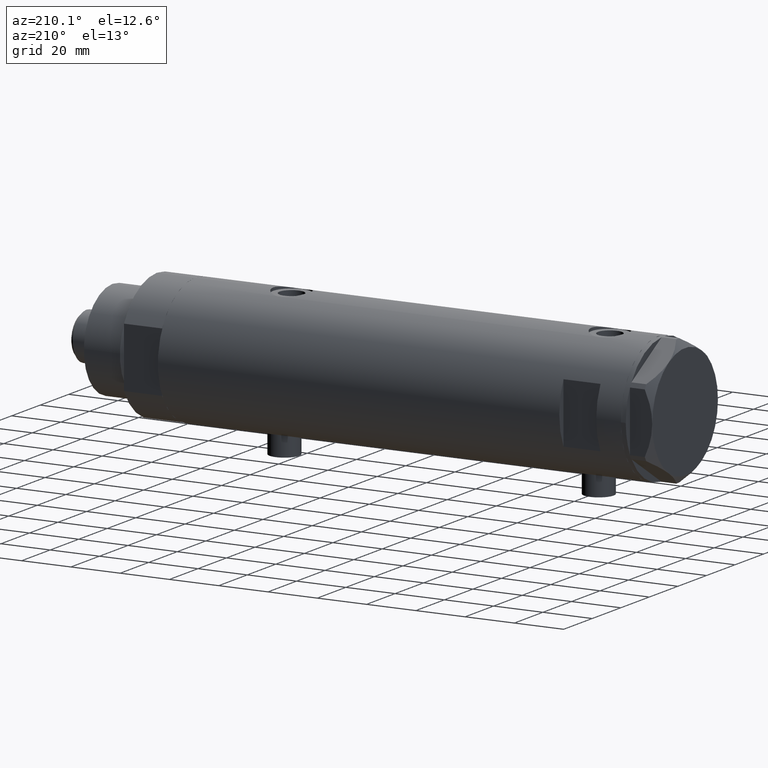
[diagram: clean part render]
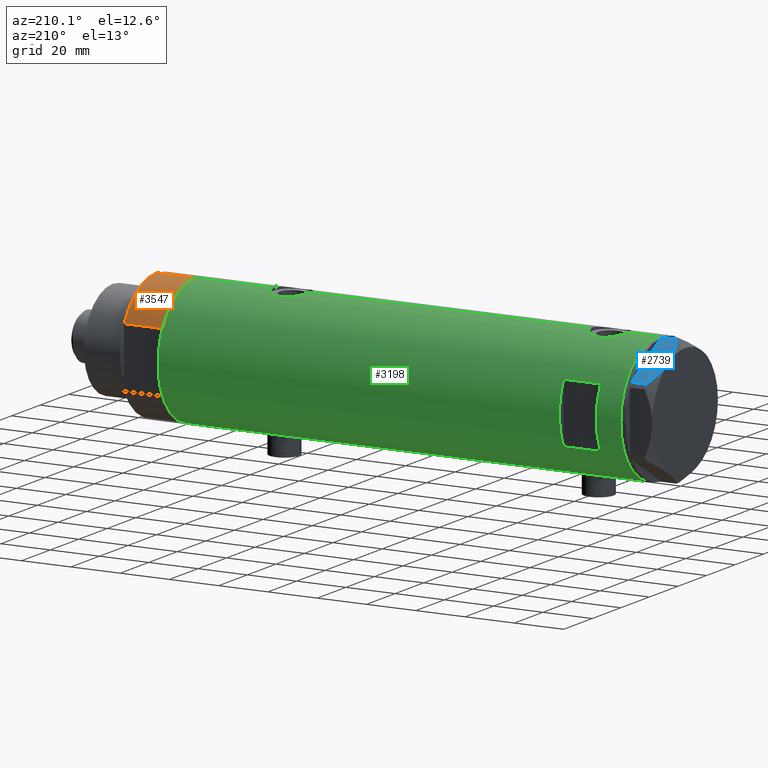
[diagram: same view with three faces highlighted in distinct colors, each labeled with its STEP entity id]
A machine part, auxiliary view with three faces highlighted in distinct colors.
Their STEP definitions:

[orange] entity #3547 — the highlighted cylindrical surface (partial cylindrical patch) has radius 26 mm, axis along (-1, -0, 0).
#215 = ORIENTED_EDGE ( 'NONE', *, *, #2335, .F. ) ;
#248 = AXIS2_PLACEMENT_3D ( 'NONE', #1029, #2546, #1434 ) ;
#292 = CARTESIAN_POINT ( 'NONE',  ( 0.000000000000000000, 0.000000000000000000, 0.000000000000000000 ) ) ;
#552 = CARTESIAN_POINT ( 'NONE',  ( -12.12435565298215145, 23.00000000000000355, 0.000000000000000000 ) ) ;
#844 = LINE ( 'NONE', #1694, #3263 ) ;
#921 = AXIS2_PLACEMENT_3D ( 'NONE', #1873, #1536, #2997 ) ;
#967 = LINE ( 'NONE', #552, #3695 ) ;
#1029 = CARTESIAN_POINT ( 'NONE',  ( 0.000000000000000000, 0.000000000000000000, 15.50000000000000000 ) ) ;
#1031 = ORIENTED_EDGE ( 'NONE', *, *, #2157, .F. ) ;
#1091 = EDGE_LOOP ( 'NONE', ( #215, #1031, #4245, #1686 ) ) ;
#1434 = DIRECTION ( 'NONE',  ( -1.000000000000000000, 0.000000000000000000, 0.000000000000000000 ) ) ;
#1536 = DIRECTION ( 'NONE',  ( 0.000000000000000000, 0.000000000000000000, 1.000000000000000000 ) ) ;
#1686 = ORIENTED_EDGE ( 'NONE', *, *, #2876, .T. ) ;
#1690 = FACE_OUTER_BOUND ( 'NONE', #1091, .T. ) ;
#1694 = CARTESIAN_POINT ( 'NONE',  ( -26.00000000000000355, 0.000000000000000000, 15.50000000000000000 ) ) ;
#1829 = CYLINDRICAL_SURFACE ( 'NONE', #248, 26.00000000000000355 ) ;
#1872 = CARTESIAN_POINT ( 'NONE',  ( -12.12435565298215145, 23.00000000000000355, 0.000000000000000000 ) ) ;
#1873 = CARTESIAN_POINT ( 'NONE',  ( 0.000000000000000000, 0.000000000000000000, 15.50000000000000000 ) ) ;
#2157 = EDGE_CURVE ( 'NONE', #4690, #2283, #3040, .T. ) ;
#2283 = VERTEX_POINT ( 'NONE', #3457 ) ;
#2300 = CARTESIAN_POINT ( 'NONE',  ( -26.00000000000000355, 0.000000000000000000, 0.000000000000000000 ) ) ;
#2335 = EDGE_CURVE ( 'NONE', #2283, #3141, #844, .T. ) ;
#2546 = DIRECTION ( 'NONE',  ( -0.000000000000000000, -0.000000000000000000, -1.000000000000000000 ) ) ;
#2654 = AXIS2_PLACEMENT_3D ( 'NONE', #292, #2924, #4496 ) ;
#2876 = EDGE_CURVE ( 'NONE', #3165, #3141, #4596, .T. ) ;
#2924 = DIRECTION ( 'NONE',  ( 0.000000000000000000, 0.000000000000000000, 1.000000000000000000 ) ) ;
#2997 = DIRECTION ( 'NONE',  ( 1.000000000000000000, 0.000000000000000000, 0.000000000000000000 ) ) ;
#3040 = CIRCLE ( 'NONE', #921, 26.00000000000000355 ) ;
#3141 = VERTEX_POINT ( 'NONE', #2300 ) ;
#3144 = DIRECTION ( 'NONE',  ( -0.000000000000000000, -0.000000000000000000, 1.000000000000000000 ) ) ;
#3165 = VERTEX_POINT ( 'NONE', #1872 ) ;
#3175 = DIRECTION ( 'NONE',  ( -0.000000000000000000, -0.000000000000000000, -1.000000000000000000 ) ) ;
#3263 = VECTOR ( 'NONE', #3175, 1000.000000000000000 ) ;
#3299 = CARTESIAN_POINT ( 'NONE',  ( -12.12435565298214613, 23.00000000000000355, 15.50000000000000000 ) ) ;
#3457 = CARTESIAN_POINT ( 'NONE',  ( -26.00000000000000355, 0.000000000000000000, 15.50000000000000000 ) ) ;
#3528 = EDGE_CURVE ( 'NONE', #3165, #4690, #967, .T. ) ;
#3547 = ADVANCED_FACE ( 'NONE', ( #1690 ), #1829, .T. ) ;
#3695 = VECTOR ( 'NONE', #3144, 1000.000000000000000 ) ;
#4245 = ORIENTED_EDGE ( 'NONE', *, *, #3528, .F. ) ;
#4496 = DIRECTION ( 'NONE',  ( 1.000000000000000000, 0.000000000000000000, 0.000000000000000000 ) ) ;
#4596 = CIRCLE ( 'NONE', #2654, 26.00000000000000355 ) ;
#4690 = VERTEX_POINT ( 'NONE', #3299 ) ;

[blue] entity #2739 — the highlighted planar face has unit normal (-0, -0.5, -0.866).
#27 = ORIENTED_EDGE ( 'NONE', *, *, #4286, .F. ) ;
#101 = DIRECTION ( 'NONE',  ( 0.000000000000000000, 0.000000000000000000, 1.000000000000000000 ) ) ;
#186 = CARTESIAN_POINT ( 'NONE',  ( 7.836767740116735048, -22.03355241838978884, 8.637313967156950767 ) ) ;
#209 = CARTESIAN_POINT ( 'NONE',  ( 11.50000000000018296, -19.91858428704203732, 9.000000000000000000 ) ) ;
#286 = VECTOR ( 'NONE', #2657, 999.9999999999998863 ) ;
#343 = CARTESIAN_POINT ( 'NONE',  ( 0.9699484522386233598, -25.99811238272281244, 5.983800287807552465 ) ) ;
#527 = EDGE_CURVE ( 'NONE', #3356, #3070, #3816, .T. ) ;
#558 = CARTESIAN_POINT ( 'NONE',  ( 11.04134848610953235, -20.18338686205092714, 9.000000000000095923 ) ) ;
#606 = CARTESIAN_POINT ( 'NONE',  ( 11.50000000000018296, -19.91858428704203732, 9.000000000000000000 ) ) ;
#687 = CARTESIAN_POINT ( 'NONE',  ( 22.03005154776152708, -13.83905619136116449, 0.000000000000000000 ) ) ;
#719 = LINE ( 'NONE', #2602, #286 ) ;
#753 = VECTOR ( 'NONE', #1040, 999.9999999999998863 ) ;
#775 = CARTESIAN_POINT ( 'NONE',  ( 1.854543075583504180E-13, -26.55811238272274366, 0.000000000000000000 ) ) ;
#930 = CARTESIAN_POINT ( 'NONE',  ( 2.626494320835812690, -25.04170517956324460, 6.877782426143459915 ) ) ;
#1001 = CARTESIAN_POINT ( 'NONE',  ( 22.03005154776152352, -13.83905619136116449, 5.983800287807632401 ) ) ;
#1040 = DIRECTION ( 'NONE',  ( 0.8660254037844345998, 0.5000000000000069944, 0.000000000000000000 ) ) ;
#1050 = VERTEX_POINT ( 'NONE', #2506 ) ;
#1246 = CARTESIAN_POINT ( 'NONE',  ( 22.00000000000017053, -13.85640646055075464, 0.000000000000000000 ) ) ;
#1383 = CARTESIAN_POINT ( 'NONE',  ( 20.35958612119336308, -14.80349985506228094, 6.844201024438393510 ) ) ;
#1405 = CARTESIAN_POINT ( 'NONE',  ( 11.50000000000018296, -19.91858428704203732, 9.000000000000000000 ) ) ;
#1417 = PLANE ( 'NONE',  #4674 ) ;
#1441 = CARTESIAN_POINT ( 'NONE',  ( 1.854543075583504180E-13, -26.55811238272274366, 9.000000000000000000 ) ) ;
#1534 = EDGE_CURVE ( 'NONE', #1833, #3356, #3274, .T. ) ;
#1569 = CARTESIAN_POINT ( 'NONE',  ( 0.9699484522387652463, -25.99811238272272718, 9.000000000000000000 ) ) ;
#1741 = CARTESIAN_POINT ( 'NONE',  ( 9.197898616903062319, -21.24770314027487572, 8.852712638955805957 ) ) ;
#1833 = VERTEX_POINT ( 'NONE', #2721 ) ;
#1954 = EDGE_CURVE ( 'NONE', #3070, #1050, #3784, .T. ) ;
#2211 = ORIENTED_EDGE ( 'NONE', *, *, #527, .T. ) ;
#2352 = VECTOR ( 'NONE', #101, 1000.000000000000000 ) ;
#2384 = ORIENTED_EDGE ( 'NONE', *, *, #2608, .T. ) ;
#2387 = DIRECTION ( 'NONE',  ( 0.8660254037844345998, 0.5000000000000069944, 0.000000000000000000 ) ) ;
#2506 = CARTESIAN_POINT ( 'NONE',  ( 22.03005154776152352, -13.83905619136116449, 5.983800287807632401 ) ) ;
#2602 = CARTESIAN_POINT ( 'NONE',  ( 1.854543075583504180E-13, -26.55811238272274366, 0.000000000000000000 ) ) ;
#2608 = EDGE_CURVE ( 'NONE', #3213, #1833, #719, .T. ) ;
#2657 = DIRECTION ( 'NONE',  ( 0.8660254037844345998, 0.5000000000000069944, 0.000000000000000000 ) ) ;
#2721 = CARTESIAN_POINT ( 'NONE',  ( 1.000000000000106803, -25.98076211353316367, 0.000000000000000000 ) ) ;
#2739 = ADVANCED_FACE ( 'NONE', ( #4797 ), #1417, .F. ) ;
#2741 = CARTESIAN_POINT ( 'NONE',  ( 0.9699484522387654684, -25.99811238272272718, 0.000000000000000000 ) ) ;
#2818 = EDGE_CURVE ( 'NONE', #4599, #3213, #3766, .T. ) ;
#2825 = CARTESIAN_POINT ( 'NONE',  ( 10.58093321976977386, -20.44920774001120733, 8.981686407609503320 ) ) ;
#2861 = CARTESIAN_POINT ( 'NONE',  ( 6.946777556903783513, -22.54738849024392877, 8.426899937603783641 ) ) ;
#2880 = CARTESIAN_POINT ( 'NONE',  ( 21.20080365460326988, -14.31782268570101735, 6.431317509509397290 ) ) ;
#2901 = CARTESIAN_POINT ( 'NONE',  ( 15.11535457301044261, -17.83125835109846591, 8.707651728477005193 ) ) ;
#2913 = DIRECTION ( 'NONE',  ( -0.5000000000000071054, 0.8660254037844345998, 0.000000000000000000 ) ) ;
#3070 = VERTEX_POINT ( 'NONE', #687 ) ;
#3101 = VECTOR ( 'NONE', #4185, 1000.000000000000000 ) ;
#3203 = ORIENTED_EDGE ( 'NONE', *, *, #2818, .T. ) ;
#3213 = VERTEX_POINT ( 'NONE', #2741 ) ;
#3232 = CARTESIAN_POINT ( 'NONE',  ( 18.64279229058404752, -15.79469123530767227, 7.570552255229726413 ) ) ;
#3267 = ORIENTED_EDGE ( 'NONE', *, *, #1954, .T. ) ;
#3274 = LINE ( 'NONE', #4409, #753 ) ;
#3306 = B_SPLINE_CURVE_WITH_KNOTS ( 'NONE', 3,
 ( #1405, #4446, #2901, #4788, #4001, #3232, #4734, #1383, #2880, #1001 ),
 .UNSPECIFIED., .F., .F.,
 ( 4, 2, 2, 2, 4 ),
 ( 0.01376519981810312224, 0.01998941321701588197, 0.02154546656674407104, 0.02310151991647226011, 0.02621362661592864518 ),
 .UNSPECIFIED. ) ;
#3356 = VERTEX_POINT ( 'NONE', #1246 ) ;
#3584 = CARTESIAN_POINT ( 'NONE',  ( 0.9699484522386233598, -25.99811238272281244, 5.983800287807552465 ) ) ;
#3766 = LINE ( 'NONE', #1569, #3101 ) ;
#3784 = LINE ( 'NONE', #3809, #2352 ) ;
#3794 = EDGE_CURVE ( 'NONE', #4599, #4490, #3919, .T. ) ;
#3809 = CARTESIAN_POINT ( 'NONE',  ( 22.03005154776152352, -13.83905619136116449, 9.000000000000000000 ) ) ;
#3816 = LINE ( 'NONE', #775, #4276 ) ;
#3919 = B_SPLINE_CURVE_WITH_KNOTS ( 'NONE', 3,
 ( #3584, #930, #4747, #2861, #186, #1741, #4353, #2825, #558, #606 ),
 .UNSPECIFIED., .F., .F.,
 ( 4, 2, 2, 2, 4 ),
 ( 0.001228959670438524313, 0.007497079744270824901, 0.01063113978118697747, 0.01219816979964504985, 0.01376519981810312224 ),
 .UNSPECIFIED. ) ;
#4001 = CARTESIAN_POINT ( 'NONE',  ( 17.77001848220201907, -16.29858742851870090, 7.892128867758446908 ) ) ;
#4053 = DIRECTION ( 'NONE',  ( -0.8660254037844344888, -0.5000000000000069944, 0.000000000000000000 ) ) ;
#4067 = ORIENTED_EDGE ( 'NONE', *, *, #3794, .F. ) ;
#4185 = DIRECTION ( 'NONE',  ( 0.000000000000000000, 0.000000000000000000, -1.000000000000000000 ) ) ;
#4268 = ORIENTED_EDGE ( 'NONE', *, *, #1534, .T. ) ;
#4276 = VECTOR ( 'NONE', #2387, 999.9999999999998863 ) ;
#4286 = EDGE_CURVE ( 'NONE', #4490, #1050, #3306, .T. ) ;
#4353 = CARTESIAN_POINT ( 'NONE',  ( 9.656518383329995459, -20.98291889467261129, 8.907842277728439839 ) ) ;
#4409 = CARTESIAN_POINT ( 'NONE',  ( 1.854543075583504180E-13, -26.55811238272274366, 0.000000000000000000 ) ) ;
#4446 = CARTESIAN_POINT ( 'NONE',  ( 13.32175508098997518, -18.86679350063488059, 9.000000000000094147 ) ) ;
#4458 = EDGE_LOOP ( 'NONE', ( #4067, #3203, #2384, #4268, #2211, #3267, #27 ) ) ;
#4490 = VERTEX_POINT ( 'NONE', #209 ) ;
#4599 = VERTEX_POINT ( 'NONE', #343 ) ;
#4674 = AXIS2_PLACEMENT_3D ( 'NONE', #1441, #2913, #4053 ) ;
#4734 = CARTESIAN_POINT ( 'NONE',  ( 19.07486218897004093, -15.54523556316577704, 7.397272853991418096 ) ) ;
#4747 = CARTESIAN_POINT ( 'NONE',  ( 4.320186229910052411, -24.06385169993491857, 7.629374868826107381 ) ) ;
#4788 = CARTESIAN_POINT ( 'NONE',  ( 17.32831362639727146, -16.55360584591992890, 8.040681765829337024 ) ) ;
#4797 = FACE_OUTER_BOUND ( 'NONE', #4458, .T. ) ;

[green] entity #3198 — the highlighted cylindrical surface (partial cylindrical patch) has radius 26 mm, axis along (-1, -0, 0).
#67 = CARTESIAN_POINT ( 'NONE',  ( 25.17636585680005723, 6.493453152855874322, -50.98900750337196541 ) ) ;
#95 = DIRECTION ( 'NONE',  ( 0.000000000000000000, 0.000000000000000000, 1.000000000000000000 ) ) ;
#119 = CARTESIAN_POINT ( 'NONE',  ( 25.31017500740584936, 5.951503630041857562, -50.17950407362597076 ) ) ;
#123 = VECTOR ( 'NONE', #4469, 1000.000000000000000 ) ;
#135 = CARTESIAN_POINT ( 'NONE',  ( -25.81251897318926680, 3.135439098787735190, 75.37199178085172946 ) ) ;
#142 = DIRECTION ( 'NONE',  ( 0.000000000000000000, 0.000000000000000000, 1.000000000000000000 ) ) ;
#147 = CARTESIAN_POINT ( 'NONE',  ( -25.31518616157687163, 5.930210831981644226, -59.66587117207024704 ) ) ;
#171 = CARTESIAN_POINT ( 'NONE',  ( -25.95208098418916975, 1.628413954368986172, -63.69806792170716392 ) ) ;
#180 = CARTESIAN_POINT ( 'NONE',  ( -25.85406084573621754, 2.777003695811651962, 75.56412841326095986 ) ) ;
#189 = CARTESIAN_POINT ( 'NONE',  ( -25.98789693408478740, 0.8193301824842007530, -63.84948980265349405 ) ) ;
#197 = CARTESIAN_POINT ( 'NONE',  ( 25.30960479024496479, 5.958491152160513948, 69.86860322320036687 ) ) ;
#198 = CARTESIAN_POINT ( 'NONE',  ( -25.98057228346869607, 1.024901789261878138, 63.78119414145174204 ) ) ;
#210 = CARTESIAN_POINT ( 'NONE',  ( 25.38117076385347559, 5.641057083563602248, 79.39856579741847042 ) ) ;
#218 = CARTESIAN_POINT ( 'NONE',  ( 25.11254978876589306, 6.737777305585155752, 71.11974648253585940 ) ) ;
#219 = CARTESIAN_POINT ( 'NONE',  ( -25.57189498399054983, 4.707763994471525493, 74.08090281055548587 ) ) ;
#234 = CARTESIAN_POINT ( 'NONE',  ( -25.57189498399055694, 4.707763994471532598, -53.51909718944453687 ) ) ;
#242 = CARTESIAN_POINT ( 'NONE',  ( 24.89484527721569052, 7.499778575171894168, 73.95449194517063063 ) ) ;
#303 = CARTESIAN_POINT ( 'NONE',  ( 25.78922176490238272, 3.335318700939508219, 67.71449431233527605 ) ) ;
#304 = VERTEX_POINT ( 'NONE', #4218 ) ;
#321 = DIRECTION ( 'NONE',  ( -0.000000000000000000, -0.000000000000000000, -1.000000000000000000 ) ) ;
#369 = CARTESIAN_POINT ( 'NONE',  ( 25.94484652078418563, 1.709678645892020787, -62.05665346759173673 ) ) ;
#377 = CARTESIAN_POINT ( 'NONE',  ( 24.90976107960111818, 7.450765568638821001, 75.43882869351466525 ) ) ;
#379 = LINE ( 'NONE', #1849, #2106 ) ;
#389 = VERTEX_POINT ( 'NONE', #4680 ) ;
#391 = VECTOR ( 'NONE', #321, 1000.000000000000000 ) ;
#395 = CARTESIAN_POINT ( 'NONE',  ( 25.38132706741445688, 5.649034551923786118, -59.70731952814044519 ) ) ;
#406 = CARTESIAN_POINT ( 'NONE',  ( 26.00000000000001066, 0.4983968644076011700, 66.95000000000003126 ) ) ;
#419 = CARTESIAN_POINT ( 'NONE',  ( 25.59528664075983428, 4.573671112500298896, -60.69909503516726090 ) ) ;
#437 = EDGE_CURVE ( 'NONE', #1170, #389, #3562, .T. ) ;
#438 = CARTESIAN_POINT ( 'NONE',  ( 25.00820649268565887, 7.115348876445586335, -52.32815999524549966 ) ) ;
#448 = DIRECTION ( 'NONE',  ( 0.000000000000000000, 1.000000000000000000, -4.803849625781927035E-15 ) ) ;
#467 = CARTESIAN_POINT ( 'NONE',  ( 0.000000000000000000, 0.000000000000000000, -93.95000000000000284 ) ) ;
#489 = VERTEX_POINT ( 'NONE', #4796 ) ;
#504 = CARTESIAN_POINT ( 'NONE',  ( -25.85449082491264150, 2.772892880050696007, 64.33390702514678594 ) ) ;
#513 = CARTESIAN_POINT ( 'NONE',  ( -25.28673619335056699, 6.048783215285175707, -59.27550990348180449 ) ) ;
#526 = CARTESIAN_POINT ( 'NONE',  ( -25.92432690655987315, 2.018143994254077978, 64.02070577177286737 ) ) ;
#530 = LINE ( 'NONE', #3123, #1600 ) ;
#537 = CARTESIAN_POINT ( 'NONE',  ( 25.27545867390324119, 6.096774941222088628, -50.37522593042033492 ) ) ;
#539 = CARTESIAN_POINT ( 'NONE',  ( -25.33346170681504006, 5.849967696906726466, -55.44052947900495809 ) ) ;
#565 = CARTESIAN_POINT ( 'NONE',  ( -25.85449082491264150, 2.772892880050693787, -63.26609297485322259 ) ) ;
#573 = CARTESIAN_POINT ( 'NONE',  ( -25.23757896588369576, 6.250168635417627350, 69.54324691589501128 ) ) ;
#582 = CARTESIAN_POINT ( 'NONE',  ( -25.31738333113901618, 5.918941409682884291, -55.63242077527677765 ) ) ;
#609 = CARTESIAN_POINT ( 'NONE',  ( -25.42927140605242187, 5.422776733968219354, -54.51556003986718224 ) ) ;
#630 = VERTEX_POINT ( 'NONE', #3429 ) ;
#649 = CARTESIAN_POINT ( 'NONE',  ( 25.89067367629246164, 2.424883365422562775, 81.56405204505169593 ) ) ;
#667 = EDGE_CURVE ( 'NONE', #2224, #1170, #4212, .T. ) ;
#682 = CARTESIAN_POINT ( 'NONE',  ( 24.96662810169869573, 7.257932614256865200, 76.40297309526735603 ) ) ;
#728 = CARTESIAN_POINT ( 'NONE',  ( 25.97197502027376004, 1.230965554787597060, 81.85240824498373513 ) ) ;
#758 = CARTESIAN_POINT ( 'NONE',  ( -25.90661719257678541, 2.209805098346977914, -51.80011254218477745 ) ) ;
#779 = CIRCLE ( 'NONE', #1404, 26.00000000000000355 ) ;
#790 = CARTESIAN_POINT ( 'NONE',  ( 24.97016856345952718, 7.245430721349219283, -56.70303040919392856 ) ) ;
#810 = EDGE_CURVE ( 'NONE', #4811, #2994, #2764, .T. ) ;
#814 = CARTESIAN_POINT ( 'NONE',  ( 25.01140519645288762, 7.101774040639623919, -57.17392235700823733 ) ) ;
#890 = EDGE_CURVE ( 'NONE', #389, #489, #2564, .T. ) ;
#891 = CARTESIAN_POINT ( 'NONE',  ( 25.31017500740586001, 5.951503630041874437, 79.02049592637401076 ) ) ;
#898 = CARTESIAN_POINT ( 'NONE',  ( -25.59680708126579773, 4.563450671387936808, 65.67456050020027192 ) ) ;
#906 = CARTESIAN_POINT ( 'NONE',  ( -25.92432690655987315, 2.018143994254076201, -63.57929422822715537 ) ) ;
#922 = CARTESIAN_POINT ( 'NONE',  ( -25.98789693408479096, 0.8193301824841990877, 63.75051019734653579 ) ) ;
#957 = CARTESIAN_POINT ( 'NONE',  ( -26.00000000000000355, 3.184077527250253257E-15, -63.90000000000001279 ) ) ;
#963 = ORIENTED_EDGE ( 'NONE', *, *, #1380, .F. ) ;
#974 = LINE ( 'NONE', #3453, #2589 ) ;
#1047 = CARTESIAN_POINT ( 'NONE',  ( -26.00000000000000355, 3.184077527325983904E-15, 63.70000000000000995 ) ) ;
#1064 = EDGE_LOOP ( 'NONE', ( #4494, #1610, #2974, #3693, #2348, #4355, #2145, #3946, #3298, #1300, #3574, #4321 ) ) ;
#1125 = CARTESIAN_POINT ( 'NONE',  ( 25.48882460966380492, 5.133289275481218716, -60.22343523597908188 ) ) ;
#1170 = VERTEX_POINT ( 'NONE', #2142 ) ;
#1179 = CARTESIAN_POINT ( 'NONE',  ( -25.31518616157687518, 5.930210831981638009, 67.93412882792976859 ) ) ;
#1208 = CYLINDRICAL_SURFACE ( 'NONE', #3259, 26.00000000000000355 ) ;
#1213 = CARTESIAN_POINT ( 'NONE',  ( 26.00000000000000355, 0.000000000000000000, -93.95000000000000284 ) ) ;
#1227 = CARTESIAN_POINT ( 'NONE',  ( -12.12435565298214080, 23.00000000000000355, 83.95000000000000284 ) ) ;
#1229 = CARTESIAN_POINT ( 'NONE',  ( 25.41763780493360514, 5.474943943663457269, -49.61823686211067042 ) ) ;
#1258 = CARTESIAN_POINT ( 'NONE',  ( -25.95015815577423268, 1.621168830448744158, -51.61041429560182081 ) ) ;
#1266 = VERTEX_POINT ( 'NONE', #1213 ) ;
#1270 = CARTESIAN_POINT ( 'NONE',  ( -25.33346170681504361, 5.849967696906720249, 72.15947052099508596 ) ) ;
#1280 = CARTESIAN_POINT ( 'NONE',  ( -25.57167265924275057, 4.701795585128879296, -61.77276288310033436 ) ) ;
#1293 = CARTESIAN_POINT ( 'NONE',  ( -25.24766879991037172, 6.209837761082654062, 70.76849569029700149 ) ) ;
#1300 = ORIENTED_EDGE ( 'NONE', *, *, #3944, .F. ) ;
#1305 = CARTESIAN_POINT ( 'NONE',  ( -25.36894112891956254, 5.694149517195242538, -60.23482505198307990 ) ) ;
#1317 = CARTESIAN_POINT ( 'NONE',  ( 25.52465069878074289, 4.952713637311392247, 68.81255139184744962 ) ) ;
#1319 = CARTESIAN_POINT ( 'NONE',  ( -25.67095236150574777, 4.133649689219788925, 74.65535228274264057 ) ) ;
#1328 = CARTESIAN_POINT ( 'NONE',  ( 26.00000000000000000, 0.2455784580650491877, -47.25000000000000000 ) ) ;
#1331 = CARTESIAN_POINT ( 'NONE',  ( -26.00000000000000711, 0.2043916521039016998, -63.90000000000001279 ) ) ;
#1332 = VECTOR ( 'NONE', #1376, 1000.000000000000000 ) ;
#1340 = CARTESIAN_POINT ( 'NONE',  ( -25.28915991580760192, 6.038390257328910771, 71.57552651146907863 ) ) ;
#1352 = CARTESIAN_POINT ( 'NONE',  ( -25.45277932469921467, 5.307477387851106343, -60.95672800165311855 ) ) ;
#1359 = CARTESIAN_POINT ( 'NONE',  ( 24.97016856345952007, 7.245430721349213954, 72.49696959080606007 ) ) ;
#1373 = CARTESIAN_POINT ( 'NONE',  ( -25.28915991580758771, 6.038390257328915212, -56.02447348853092279 ) ) ;
#1376 = DIRECTION ( 'NONE',  ( 0.000000000000000000, 0.000000000000000000, 1.000000000000000000 ) ) ;
#1380 = EDGE_CURVE ( 'NONE', #3862, #3983, #3421, .T. ) ;
#1402 = CARTESIAN_POINT ( 'NONE',  ( 25.59685363299823635, 4.579266302355753382, 80.40972068102654191 ) ) ;
#1404 = AXIS2_PLACEMENT_3D ( 'NONE', #4810, #3304, #1824 ) ;
#1408 = CARTESIAN_POINT ( 'NONE',  ( 25.20855488770172315, 6.367749707222633226, 78.42002223040960018 ) ) ;
#1495 = ORIENTED_EDGE ( 'NONE', *, *, #4724, .F. ) ;
#1501 = B_SPLINE_CURVE_WITH_KNOTS ( 'NONE', 3,
 ( #4303, #2451, #4673, #2107, #4323, #2473, #3122, #180, #135, #3576, #1319, #219, #1642, #2011, #3194, #1270, #1730, #1340, #2772, #1293, #3935, #573, #3214, #1666, #1179, #2836, #3912, #4260, #3866, #2797, #3885, #2066, #898, #2689, #4166, #4281, #504, #526, #2039, #198, #922, #2432, #3538, #1047 ),
 .UNSPECIFIED., .F., .F.,
 ( 4, 2, 2, 2, 2, 2, 2, 2, 2, 2, 2, 2, 2, 2, 2, 2, 2, 2, 2, 2, 2, 4 ),
 ( 1.191872608207982896E-18, 0.001225774033668414415, 0.001838661050502624766, 0.002451548067336834901, 0.003677322101005254303, 0.004903096134673673272, 0.006128870168342093541, 0.007354644202010512943, 0.007967531218844704430, 0.008580418235678894182, 0.009806192269347313584, 0.01103196630301573472, 0.01225774033668415586, 0.01287062735351834561, 0.01348351437035253536, 0.01409640138718672858, 0.01470928840402092007, 0.01593506243768930131, 0.01716083647135768081, 0.01838661050502606725, 0.01899949752186025700, 0.01961238453869444676 ),
 .UNSPECIFIED. ) ;
#1533 = CARTESIAN_POINT ( 'NONE',  ( 25.98569222077104968, 0.9879514382926379845, -62.20081846687560301 ) ) ;
#1545 = CARTESIAN_POINT ( 'NONE',  ( 25.92799636947105668, 1.948138538329397651, 67.20322312211786198 ) ) ;
#1555 = CARTESIAN_POINT ( 'NONE',  ( 24.89484527721569052, 7.499778575171895056, -55.24550805482936511 ) ) ;
#1557 = CARTESIAN_POINT ( 'NONE',  ( -25.99009688862344092, 0.8219492608955333290, -51.44084060773424483 ) ) ;
#1578 = CARTESIAN_POINT ( 'NONE',  ( 25.03487248886523986, 7.018875226450791871, -57.40423217392064714 ) ) ;
#1592 = CARTESIAN_POINT ( 'NONE',  ( -26.00000000000000355, 1.227111019500118713E-15, 76.20000000000001705 ) ) ;
#1600 = VECTOR ( 'NONE', #2776, 1000.000000000000000 ) ;
#1601 = CARTESIAN_POINT ( 'NONE',  ( 26.00000000000000711, 0.4983968644076025023, -62.25000000000002132 ) ) ;
#1603 = DIRECTION ( 'NONE',  ( 1.000000000000000000, 0.000000000000000000, 0.000000000000000000 ) ) ;
#1610 = ORIENTED_EDGE ( 'NONE', *, *, #3490, .T. ) ;
#1626 = CARTESIAN_POINT ( 'NONE',  ( 25.93077501166307641, 1.957027822413551332, -47.49302141437592439 ) ) ;
#1628 = CARTESIAN_POINT ( 'NONE',  ( -26.00000000000000711, 0.4145874687851193174, -51.39999999999999858 ) ) ;
#1642 = CARTESIAN_POINT ( 'NONE',  ( -25.52242378584899640, 4.965907353613394193, 73.76719602921740204 ) ) ;
#1666 = CARTESIAN_POINT ( 'NONE',  ( -25.28673619335055278, 6.048783215285170378, 68.32449009651820404 ) ) ;
#1699 = CARTESIAN_POINT ( 'NONE',  ( -25.99759026373432036, 0.4091325989570689381, -63.88999890044897967 ) ) ;
#1716 = EDGE_CURVE ( 'NONE', #1266, #4133, #379, .T. ) ;
#1729 = CARTESIAN_POINT ( 'NONE',  ( 25.03487248886523986, 7.018875226450789206, 71.79576782607935570 ) ) ;
#1730 = CARTESIAN_POINT ( 'NONE',  ( -25.31738333113901263, 5.918941409682878074, 71.96757922472318114 ) ) ;
#1824 = DIRECTION ( 'NONE',  ( 1.000000000000000000, 0.000000000000000000, 0.000000000000000000 ) ) ;
#1843 = CARTESIAN_POINT ( 'NONE',  ( 25.72868876879096334, 3.768709330223698473, 80.95267486870062612 ) ) ;
#1849 = CARTESIAN_POINT ( 'NONE',  ( 26.00000000000000355, 0.000000000000000000, -93.95000000000000284 ) ) ;
#1865 = ORIENTED_EDGE ( 'NONE', *, *, #4311, .F. ) ;
#1897 = CARTESIAN_POINT ( 'NONE',  ( 25.30960479024496479, 5.958491152160522830, -59.33139677679963597 ) ) ;
#1898 = CARTESIAN_POINT ( 'NONE',  ( -25.85406084573621754, 2.777003695811657735, -52.03587158673904156 ) ) ;
#1923 = CARTESIAN_POINT ( 'NONE',  ( 24.95233689475079331, 7.306396477445179727, -56.46103813146666539 ) ) ;
#1949 = CARTESIAN_POINT ( 'NONE',  ( 25.08669247833291749, 6.831361936037321669, -51.64462260596209831 ) ) ;
#1973 = CARTESIAN_POINT ( 'NONE',  ( -26.00000000000000355, -8.503928565788675107E-16, -51.39999999999999858 ) ) ;
#1998 = CARTESIAN_POINT ( 'NONE',  ( 25.89067367629246164, 2.424883365422552561, -47.63594795494832113 ) ) ;
#2011 = CARTESIAN_POINT ( 'NONE',  ( -25.42927140605242187, 5.422776733968214025, 73.08443996013286892 ) ) ;
#2021 = DIRECTION ( 'NONE',  ( 1.000000000000000000, -5.329070518200751394E-15, 0.000000000000000000 ) ) ;
#2031 = AXIS2_PLACEMENT_3D ( 'NONE', #4608, #3430, #2021 ) ;
#2039 = CARTESIAN_POINT ( 'NONE',  ( -25.95208098418916975, 1.628413954368974625, 63.90193207829288013 ) ) ;
#2053 = CARTESIAN_POINT ( 'NONE',  ( -25.38875076695534361, 5.605452563035141722, -60.42185900824105715 ) ) ;
#2066 = CARTESIAN_POINT ( 'NONE',  ( -25.57167265924275057, 4.701795585128869526, 65.82723711689968127 ) ) ;
#2076 = CARTESIAN_POINT ( 'NONE',  ( -25.98057228346870673, 1.024901789261887464, -63.81880585854828070 ) ) ;
#2094 = CARTESIAN_POINT ( 'NONE',  ( -25.24784248027028966, 6.209126813737967154, -58.47268161688059251 ) ) ;
#2105 = CARTESIAN_POINT ( 'NONE',  ( 25.48882460966380492, 5.133289275481214275, 68.97656476402090675 ) ) ;
#2106 = VECTOR ( 'NONE', #3002, 1000.000000000000000 ) ;
#2107 = CARTESIAN_POINT ( 'NONE',  ( -25.96182217530153480, 1.422664245316465959, 76.03935273092392322 ) ) ;
#2142 = CARTESIAN_POINT ( 'NONE',  ( 26.00000000000000355, -3.975028449552882818E-20, 81.94999999999998863 ) ) ;
#2145 = ORIENTED_EDGE ( 'NONE', *, *, #890, .F. ) ;
#2177 = CARTESIAN_POINT ( 'NONE',  ( 25.88814720404043968, 2.420758939209242566, 67.34711713171545000 ) ) ;
#2188 = CARTESIAN_POINT ( 'NONE',  ( 26.00000000000000355, -3.975028449552882818E-20, 81.94999999999998863 ) ) ;
#2191 = CARTESIAN_POINT ( 'NONE',  ( -26.00000000000000355, 3.184081677783118585E-15, -93.95000000000000284 ) ) ;
#2214 = LINE ( 'NONE', #2191, #123 ) ;
#2224 = VERTEX_POINT ( 'NONE', #4839 ) ;
#2245 = EDGE_CURVE ( 'NONE', #4811, #304, #2214, .T. ) ;
#2268 = CARTESIAN_POINT ( 'NONE',  ( 25.63006864069249602, 4.375159448492148329, -60.84654411758881309 ) ) ;
#2275 = CARTESIAN_POINT ( 'NONE',  ( 25.11550258961940330, 6.725017566862031337, 77.77928477806021590 ) ) ;
#2297 = CARTESIAN_POINT ( 'NONE',  ( 25.88814720404043968, 2.420758939209242566, -61.85288286828453153 ) ) ;
#2324 = CARTESIAN_POINT ( 'NONE',  ( -25.96182217530152769, 1.422664245316466847, -51.56064726907609241 ) ) ;
#2348 = ORIENTED_EDGE ( 'NONE', *, *, #2486, .F. ) ;
#2393 = CARTESIAN_POINT ( 'NONE',  ( 26.00000000000000355, 0.000000000000000000, -93.95000000000000284 ) ) ;
#2405 = VERTEX_POINT ( 'NONE', #2581 ) ;
#2432 = CARTESIAN_POINT ( 'NONE',  ( -25.99759026373432391, 0.4091325989570679389, 63.71000109955102175 ) ) ;
#2451 = CARTESIAN_POINT ( 'NONE',  ( -26.00000000000000711, 0.4145874687851191509, 76.20000000000003126 ) ) ;
#2473 = CARTESIAN_POINT ( 'NONE',  ( -25.92257874449350652, 2.014648337067151296, 75.86996418363679595 ) ) ;
#2486 = EDGE_CURVE ( 'NONE', #2826, #304, #1501, .T. ) ;
#2493 = CIRCLE ( 'NONE', #2031, 26.00000000000000355 ) ;
#2497 = CARTESIAN_POINT ( 'NONE',  ( 24.95233689475078620, 7.306396477445174398, 72.73896186853336587 ) ) ;
#2518 = CARTESIAN_POINT ( 'NONE',  ( 26.00000000000000355, -3.975025925197986111E-20, -47.25000000000000000 ) ) ;
#2562 = CARTESIAN_POINT ( 'NONE',  ( 12.12435565298214080, 23.00000000000000355, -93.95000000000000284 ) ) ;
#2564 = CIRCLE ( 'NONE', #3096, 26.00000000000000355 ) ;
#2577 = CARTESIAN_POINT ( 'NONE',  ( 26.00000000000000355, 0.000000000000000000, -93.95000000000000284 ) ) ;
#2581 = CARTESIAN_POINT ( 'NONE',  ( -26.00000000000000355, 3.184081677783118585E-15, -93.95000000000000284 ) ) ;
#2585 = CARTESIAN_POINT ( 'NONE',  ( -26.00000000000000355, 3.184081677783118585E-15, -93.95000000000000284 ) ) ;
#2587 = CARTESIAN_POINT ( 'NONE',  ( 25.99652140603931727, 0.4914164889130596126, 81.93796820480459075 ) ) ;
#2589 = VECTOR ( 'NONE', #2635, 1000.000000000000000 ) ;
#2635 = DIRECTION ( 'NONE',  ( 0.000000000000000000, 0.000000000000000000, 1.000000000000000000 ) ) ;
#2669 = CARTESIAN_POINT ( 'NONE',  ( 25.17424625143663164, 6.506691718592096940, -58.51241626033723975 ) ) ;
#2689 = CARTESIAN_POINT ( 'NONE',  ( -25.67176285215957776, 4.128807479817784731, 65.24008401548877600 ) ) ;
#2693 = CARTESIAN_POINT ( 'NONE',  ( 24.90976107960111818, 7.450765568638821890, -53.76117130648535181 ) ) ;
#2697 = CARTESIAN_POINT ( 'NONE',  ( 0.000000000000000000, 0.000000000000000000, 68.95000000000008811 ) ) ;
#2762 = CARTESIAN_POINT ( 'NONE',  ( -25.92257874449351007, 2.014648337067152184, -51.73003581636323389 ) ) ;
#2764 = B_SPLINE_CURVE_WITH_KNOTS ( 'NONE', 3,
 ( #3473, #1628, #1557, #2324, #1258, #2762, #758, #1898, #3800, #3432, #3503, #234, #3224, #609, #4729, #539, #582, #1373, #4663, #4249, #3926, #3206, #2094, #513, #147, #1305, #2053, #3135, #1352, #3545, #4316, #1280, #2787, #3529, #4685, #2830, #565, #906, #171, #2076, #189, #1699, #1331, #957 ),
 .UNSPECIFIED., .F., .F.,
 ( 4, 2, 2, 2, 2, 2, 2, 2, 2, 2, 2, 2, 2, 2, 2, 2, 2, 2, 2, 2, 2, 4 ),
 ( 8.259724962660511443E-19, 0.001225774033668413547, 0.001838661050502616960, 0.002451548067336820590, 0.003677322101005227849, 0.004903096134673635108, 0.006128870168342044969, 0.007354644202010452228, 0.007967531218844647184, 0.008580418235678840405, 0.009806192269347230317, 0.01103196630301561676, 0.01225774033668400667, 0.01287062735351820163, 0.01348351437035239485, 0.01409640138718658807, 0.01470928840402078129, 0.01593506243768920069, 0.01716083647135761489, 0.01838661050502603256, 0.01899949752186024313, 0.01961238453869445023 ),
 .UNSPECIFIED. ) ;
#2772 = CARTESIAN_POINT ( 'NONE',  ( -25.27696731428695998, 6.089059008147561514, 71.37416306959482881 ) ) ;
#2776 = DIRECTION ( 'NONE',  ( 0.000000000000000000, 0.000000000000000000, 1.000000000000000000 ) ) ;
#2786 = CARTESIAN_POINT ( 'NONE',  ( 25.97197502027375293, 1.230965554787593730, -47.34759175501623218 ) ) ;
#2787 = CARTESIAN_POINT ( 'NONE',  ( -25.59680708126580129, 4.563450671387948354, -61.92543949979970819 ) ) ;
#2797 = CARTESIAN_POINT ( 'NONE',  ( -25.49884629689154281, 5.081547904122039938, 66.30560194303913590 ) ) ;
#2805 = CARTESIAN_POINT ( 'NONE',  ( 26.00000000000000355, -3.975025925197986111E-20, -47.25000000000000000 ) ) ;
#2815 = CARTESIAN_POINT ( 'NONE',  ( 25.38132706741445332, 5.649034551923781677, 69.49268047185955766 ) ) ;
#2826 = VERTEX_POINT ( 'NONE', #1592 ) ;
#2830 = CARTESIAN_POINT ( 'NONE',  ( -25.81206132723605506, 3.139065735901513055, -63.06978769360878090 ) ) ;
#2836 = CARTESIAN_POINT ( 'NONE',  ( -25.36894112891957320, 5.694149517195235433, 67.36517494801691441 ) ) ;
#2890 = DIRECTION ( 'NONE',  ( 0.000000000000000000, 0.000000000000000000, 1.000000000000000000 ) ) ;
#2905 = CARTESIAN_POINT ( 'NONE',  ( 25.27545867390324830, 6.096774941222087740, 78.82477406957966082 ) ) ;
#2948 = CARTESIAN_POINT ( 'NONE',  ( 25.93077501166307641, 1.957027822413550888, 81.70697858562411398 ) ) ;
#2974 = ORIENTED_EDGE ( 'NONE', *, *, #810, .F. ) ;
#2994 = VERTEX_POINT ( 'NONE', #4373 ) ;
#3000 = CARTESIAN_POINT ( 'NONE',  ( 25.08669247833292459, 6.831361936037321669, 77.55537739403790454 ) ) ;
#3002 = DIRECTION ( 'NONE',  ( 0.000000000000000000, 0.000000000000000000, 1.000000000000000000 ) ) ;
#3003 = VECTOR ( 'NONE', #3010, 1000.000000000000000 ) ;
#3010 = DIRECTION ( 'NONE',  ( 0.000000000000000000, 0.000000000000000000, 1.000000000000000000 ) ) ;
#3048 = CARTESIAN_POINT ( 'NONE',  ( 24.89471231507667071, 7.500219916954787180, -54.26121773116971525 ) ) ;
#3069 = FACE_OUTER_BOUND ( 'NONE', #1064, .T. ) ;
#3096 = AXIS2_PLACEMENT_3D ( 'NONE', #3324, #2890, #4357 ) ;
#3109 = CARTESIAN_POINT ( 'NONE',  ( 25.98255381630415783, 0.9836221648041303389, -47.31066901941807856 ) ) ;
#3122 = CARTESIAN_POINT ( 'NONE',  ( -25.90661719257679607, 2.209805098346973029, 75.79988745781523107 ) ) ;
#3123 = CARTESIAN_POINT ( 'NONE',  ( -26.00000000000000355, 3.184081677783118585E-15, -93.95000000000000284 ) ) ;
#3135 = CARTESIAN_POINT ( 'NONE',  ( -25.43062364804612940, 5.412314182902760784, -60.78227648580931941 ) ) ;
#3155 = CARTESIAN_POINT ( 'NONE',  ( 25.20855488770171959, 6.367749707222635891, -50.77997776959043108 ) ) ;
#3193 = CARTESIAN_POINT ( 'NONE',  ( 25.63006864069250668, 4.375159448492141223, 68.35345588241118264 ) ) ;
#3194 = CARTESIAN_POINT ( 'NONE',  ( -25.38675822915647728, 5.615881323213574028, 72.72306781662010167 ) ) ;
#3198 = ADVANCED_FACE ( 'NONE', ( #4591, #3069 ), #1208, .T. ) ;
#3206 = CARTESIAN_POINT ( 'NONE',  ( -25.23757896588369221, 6.250168635417633567, -58.05675308410501145 ) ) ;
#3214 = CARTESIAN_POINT ( 'NONE',  ( -25.24784248027028966, 6.209126813737962713, 69.12731838311943022 ) ) ;
#3220 = EDGE_CURVE ( 'NONE', #3245, #630, #2493, .T. ) ;
#3224 = CARTESIAN_POINT ( 'NONE',  ( -25.52242378584900351, 4.965907353613399522, -53.83280397078263491 ) ) ;
#3245 = VERTEX_POINT ( 'NONE', #1227 ) ;
#3259 = AXIS2_PLACEMENT_3D ( 'NONE', #467, #95, #1603 ) ;
#3261 = LINE ( 'NONE', #2562, #391 ) ;
#3286 = CARTESIAN_POINT ( 'NONE',  ( 24.89471231507667426, 7.500219916954787180, 74.93878226883029470 ) ) ;
#3289 = ORIENTED_EDGE ( 'NONE', *, *, #3220, .F. ) ;
#3298 = ORIENTED_EDGE ( 'NONE', *, *, #667, .F. ) ;
#3304 = DIRECTION ( 'NONE',  ( 0.000000000000000000, 0.000000000000000000, 1.000000000000000000 ) ) ;
#3324 = CARTESIAN_POINT ( 'NONE',  ( 0.000000000000000000, 0.000000000000000000, 93.95000000000000284 ) ) ;
#3348 = LINE ( 'NONE', #2577, #3003 ) ;
#3353 = CARTESIAN_POINT ( 'NONE',  ( 25.92799636947105313, 1.948138538329397651, -61.99677687788213376 ) ) ;
#3362 = CARTESIAN_POINT ( 'NONE',  ( 25.00820649268565887, 7.115348876445588999, 76.87184000475453161 ) ) ;
#3394 = CARTESIAN_POINT ( 'NONE',  ( 25.98569222077104968, 0.9879514382926418703, 66.99918153312439983 ) ) ;
#3404 = CARTESIAN_POINT ( 'NONE',  ( 24.90951684770588415, 7.451587374037536016, -55.73395604521197555 ) ) ;
#3421 = CIRCLE ( 'NONE', #3815, 26.00000000000000355 ) ;
#3429 = CARTESIAN_POINT ( 'NONE',  ( 12.12435565298214080, 23.00000000000000355, 83.95000000000000284 ) ) ;
#3430 = DIRECTION ( 'NONE',  ( -0.000000000000000000, -0.000000000000000000, -1.000000000000000000 ) ) ;
#3431 = CARTESIAN_POINT ( 'NONE',  ( 25.11550258961939974, 6.725017566862030449, -51.42071522193980826 ) ) ;
#3432 = CARTESIAN_POINT ( 'NONE',  ( -25.72105193281916868, 3.813738527046913962, -52.68166308900566719 ) ) ;
#3453 = CARTESIAN_POINT ( 'NONE',  ( -12.12435565298214080, 23.00000000000000355, -93.95000000000000284 ) ) ;
#3472 = CARTESIAN_POINT ( 'NONE',  ( 25.59685363299823280, 4.579266302355748053, -48.79027931897346804 ) ) ;
#3473 = CARTESIAN_POINT ( 'NONE',  ( -26.00000000000000355, -8.503928565788675107E-16, -51.39999999999999858 ) ) ;
#3490 = EDGE_CURVE ( 'NONE', #2405, #2994, #530, .T. ) ;
#3503 = CARTESIAN_POINT ( 'NONE',  ( -25.67095236150573712, 4.133649689219792478, -52.94464771725741770 ) ) ;
#3529 = CARTESIAN_POINT ( 'NONE',  ( -25.67176285215958131, 4.128807479817791837, -62.35991598451128226 ) ) ;
#3537 = EDGE_LOOP ( 'NONE', ( #1495, #963, #1865, #3289 ) ) ;
#3538 = CARTESIAN_POINT ( 'NONE',  ( -26.00000000000000000, 0.2043916521039007284, 63.69999999999999574 ) ) ;
#3545 = CARTESIAN_POINT ( 'NONE',  ( -25.49884629689154636, 5.081547904122044379, -61.29439805696090815 ) ) ;
#3562 = LINE ( 'NONE', #2393, #4739 ) ;
#3567 = CARTESIAN_POINT ( 'NONE',  ( 25.78997056644824326, 3.329333406239038951, -48.01165191566153112 ) ) ;
#3574 = ORIENTED_EDGE ( 'NONE', *, *, #4816, .F. ) ;
#3576 = CARTESIAN_POINT ( 'NONE',  ( -25.72105193281917579, 3.813738527046907745, 74.91833691099432713 ) ) ;
#3595 = CARTESIAN_POINT ( 'NONE',  ( 24.90951684770588770, 7.451587374037535128, 73.46604395478802019 ) ) ;
#3622 = CARTESIAN_POINT ( 'NONE',  ( 25.59528664075984139, 4.573671112500290903, 68.50090496483272773 ) ) ;
#3657 = CARTESIAN_POINT ( 'NONE',  ( 25.86510134953875450, 2.654921787384013854, 67.43132938305096502 ) ) ;
#3693 = ORIENTED_EDGE ( 'NONE', *, *, #2245, .T. ) ;
#3720 = CARTESIAN_POINT ( 'NONE',  ( 25.41763780493359803, 5.474943943663456380, 79.58176313788932532 ) ) ;
#3748 = CARTESIAN_POINT ( 'NONE',  ( 25.52465069878074999, 4.952713637311402906, -60.38744860815256743 ) ) ;
#3754 = CARTESIAN_POINT ( 'NONE',  ( 25.17636585680005723, 6.493453152855874322, 78.21099249662802322 ) ) ;
#3761 = CARTESIAN_POINT ( 'NONE',  ( 26.00000000000000355, -2.747580718823405516E-15, 66.95000000000000284 ) ) ;
#3797 = CARTESIAN_POINT ( 'NONE',  ( 26.00000000000000355, 3.343657407582877388E-16, -62.25000000000000000 ) ) ;
#3800 = CARTESIAN_POINT ( 'NONE',  ( -25.81251897318926680, 3.135439098787741852, -52.22800821914827907 ) ) ;
#3815 = AXIS2_PLACEMENT_3D ( 'NONE', #2697, #4150, #448 ) ;
#3862 = VERTEX_POINT ( 'NONE', #4138 ) ;
#3866 = CARTESIAN_POINT ( 'NONE',  ( -25.45277932469920046, 5.307477387851101014, 66.64327199834690418 ) ) ;
#3885 = CARTESIAN_POINT ( 'NONE',  ( -25.52275868012768356, 4.960454986366445773, 66.14238370593371030 ) ) ;
#3902 = CARTESIAN_POINT ( 'NONE',  ( 25.38117076385348625, 5.641057083563588037, -49.80143420258151821 ) ) ;
#3911 = CARTESIAN_POINT ( 'NONE',  ( 25.72923282622328500, 3.765147152416739917, 67.94514424215293502 ) ) ;
#3912 = CARTESIAN_POINT ( 'NONE',  ( -25.38875076695534361, 5.605452563035131064, 67.17814099175893716 ) ) ;
#3926 = CARTESIAN_POINT ( 'NONE',  ( -25.23766275406409676, 6.249830297096031551, -57.23808095444884003 ) ) ;
#3935 = CARTESIAN_POINT ( 'NONE',  ( -25.23766275406408965, 6.249830297096023557, 70.36191904555120402 ) ) ;
#3944 = EDGE_CURVE ( 'NONE', #4285, #2224, #3348, .T. ) ;
#3946 = ORIENTED_EDGE ( 'NONE', *, *, #437, .F. ) ;
#3975 = LINE ( 'NONE', #2585, #1332 ) ;
#3983 = VERTEX_POINT ( 'NONE', #4457 ) ;
#4041 = CARTESIAN_POINT ( 'NONE',  ( 25.52590365620543622, 4.955152228772151446, 80.10123727588241138 ) ) ;
#4133 = VERTEX_POINT ( 'NONE', #4264 ) ;
#4138 = CARTESIAN_POINT ( 'NONE',  ( 12.12435565298213724, 23.00000000000000355, 68.95000000000000284 ) ) ;
#4145 = CARTESIAN_POINT ( 'NONE',  ( 25.11254978876589306, 6.737777305585159304, -58.08025351746411502 ) ) ;
#4150 = DIRECTION ( 'NONE',  ( 0.000000000000000000, 4.625929269271486900E-15, 1.000000000000000000 ) ) ;
#4166 = CARTESIAN_POINT ( 'NONE',  ( -25.72087293759779669, 3.814831448865735997, 64.98261705172141944 ) ) ;
#4171 = CARTESIAN_POINT ( 'NONE',  ( 24.96662810169869573, 7.257932614256868753, -52.79702690473266102 ) ) ;
#4193 = EDGE_CURVE ( 'NONE', #1266, #2405, #779, .T. ) ;
#4212 = B_SPLINE_CURVE_WITH_KNOTS ( 'NONE', 3,
 ( #3761, #406, #3394, #4422, #1545, #2177, #3657, #303, #3911, #3193, #3622, #1317, #2105, #2815, #197, #4322, #218, #1729, #4715, #1359, #2497, #3595, #242, #3286, #377, #682, #3362, #3000, #2275, #3754, #1408, #2905, #891, #210, #3720, #4041, #1402, #1843, #4441, #649, #2948, #728, #4389, #2587, #4761, #2188 ),
 .UNSPECIFIED., .F., .F.,
 ( 4, 2, 2, 2, 2, 2, 2, 2, 2, 2, 2, 2, 2, 2, 2, 2, 2, 2, 2, 2, 2, 2, 4 ),
 ( 2.668061416744542197E-18, 0.001473395154583026240, 0.002210092731874533506, 0.002946790309166040771, 0.004420185463749071349, 0.005156883041040585987, 0.005893580618332101492, 0.007366975772915162861, 0.008840370927498224229, 0.009577068504789754480, 0.01031376608208128473, 0.01178716123666438687, 0.01326055639124748900, 0.01473395154583059113, 0.01547064912312212312, 0.01620734670041365511, 0.01694404427770518709, 0.01768074185499672255, 0.01915413700957975529, 0.02062753216416278457, 0.02210092731874581731, 0.02283762489603732848, 0.02357432247332884312 ),
 .UNSPECIFIED. ) ;
#4218 = CARTESIAN_POINT ( 'NONE',  ( -26.00000000000000355, 3.184077527325983904E-15, 63.70000000000000995 ) ) ;
#4249 = CARTESIAN_POINT ( 'NONE',  ( -25.24766879991037882, 6.209837761082661167, -56.83150430970306388 ) ) ;
#4260 = CARTESIAN_POINT ( 'NONE',  ( -25.43062364804611875, 5.412314182902751902, 66.81772351419068912 ) ) ;
#4264 = CARTESIAN_POINT ( 'NONE',  ( 26.00000000000000355, 3.343657407582877388E-16, -62.25000000000000000 ) ) ;
#4281 = CARTESIAN_POINT ( 'NONE',  ( -25.81206132723604796, 3.139065735901513055, 64.53021230639123473 ) ) ;
#4285 = VERTEX_POINT ( 'NONE', #2518 ) ;
#4303 = CARTESIAN_POINT ( 'NONE',  ( -26.00000000000000355, 1.227111019500118713E-15, 76.20000000000001705 ) ) ;
#4311 = EDGE_CURVE ( 'NONE', #630, #3862, #3261, .T. ) ;
#4314 = CARTESIAN_POINT ( 'NONE',  ( 25.72868876879095623, 3.768709330223690479, -48.24732513129933409 ) ) ;
#4316 = CARTESIAN_POINT ( 'NONE',  ( -25.52275868012768356, 4.960454986366454655, -61.45761629406634796 ) ) ;
#4321 = ORIENTED_EDGE ( 'NONE', *, *, #1716, .F. ) ;
#4322 = CARTESIAN_POINT ( 'NONE',  ( 25.17424625143663519, 6.506691718592092499, 70.68758373966274178 ) ) ;
#4323 = CARTESIAN_POINT ( 'NONE',  ( -25.95015815577422913, 1.621168830448742826, 75.98958570439820903 ) ) ;
#4355 = ORIENTED_EDGE ( 'NONE', *, *, #4697, .T. ) ;
#4357 = DIRECTION ( 'NONE',  ( 1.000000000000000000, 0.000000000000000000, 0.000000000000000000 ) ) ;
#4373 = CARTESIAN_POINT ( 'NONE',  ( -26.00000000000000355, 3.184077527250253257E-15, -63.90000000000001279 ) ) ;
#4389 = CARTESIAN_POINT ( 'NONE',  ( 25.98255381630416139, 0.9836221648041364451, 81.88933098058191717 ) ) ;
#4422 = CARTESIAN_POINT ( 'NONE',  ( 25.94484652078418563, 1.709678645892022342, 67.14334653240823059 ) ) ;
#4441 = CARTESIAN_POINT ( 'NONE',  ( 25.78997056644825392, 3.329333406239046056, 81.18834808433850014 ) ) ;
#4457 = CARTESIAN_POINT ( 'NONE',  ( -12.12435565298214080, 23.00000000000000355, 68.95000000000000284 ) ) ;
#4469 = DIRECTION ( 'NONE',  ( 0.000000000000000000, 0.000000000000000000, 1.000000000000000000 ) ) ;
#4489 = CARTESIAN_POINT ( 'NONE',  ( 25.78922176490237916, 3.335318700939508219, -61.48550568766475521 ) ) ;
#4494 = ORIENTED_EDGE ( 'NONE', *, *, #4193, .T. ) ;
#4514 = CARTESIAN_POINT ( 'NONE',  ( 25.72923282622328855, 3.765147152416745246, -61.25485575784708914 ) ) ;
#4591 = FACE_BOUND ( 'NONE', #3537, .T. ) ;
#4608 = CARTESIAN_POINT ( 'NONE',  ( 0.000000000000000000, 0.000000000000000000, 83.95000000000000284 ) ) ;
#4662 = CARTESIAN_POINT ( 'NONE',  ( 25.52590365620542912, 4.955152228772147893, -49.09876272411761988 ) ) ;
#4663 = CARTESIAN_POINT ( 'NONE',  ( -25.27696731428695287, 6.089059008147567731, -56.22583693040519393 ) ) ;
#4673 = CARTESIAN_POINT ( 'NONE',  ( -25.99009688862344092, 0.8219492608955324409, 76.15915939226574949 ) ) ;
#4680 = CARTESIAN_POINT ( 'NONE',  ( 26.00000000000000355, 0.000000000000000000, 93.95000000000000284 ) ) ;
#4683 = CARTESIAN_POINT ( 'NONE',  ( 25.99652140603931727, 0.4914164889130531177, -47.26203179519542630 ) ) ;
#4685 = CARTESIAN_POINT ( 'NONE',  ( -25.72087293759780025, 3.814831448865739105, -62.61738294827859619 ) ) ;
#4697 = EDGE_CURVE ( 'NONE', #2826, #489, #3975, .T. ) ;
#4715 = CARTESIAN_POINT ( 'NONE',  ( 25.01140519645288762, 7.101774040639619479, 72.02607764299175130 ) ) ;
#4724 = EDGE_CURVE ( 'NONE', #3983, #3245, #974, .T. ) ;
#4729 = CARTESIAN_POINT ( 'NONE',  ( -25.38675822915647728, 5.615881323213575804, -54.87693218337989265 ) ) ;
#4739 = VECTOR ( 'NONE', #142, 1000.000000000000000 ) ;
#4761 = CARTESIAN_POINT ( 'NONE',  ( 26.00000000000000711, 0.2455784580650491045, 81.94999999999997442 ) ) ;
#4795 = B_SPLINE_CURVE_WITH_KNOTS ( 'NONE', 3,
 ( #3797, #1601, #1533, #369, #3353, #2297, #4865, #4489, #4514, #2268, #419, #3748, #1125, #395, #1897, #2669, #4145, #1578, #814, #790, #1923, #3404, #1555, #3048, #2693, #4171, #438, #1949, #3431, #67, #3155, #537, #119, #3902, #1229, #4662, #3472, #4314, #3567, #1998, #1626, #2786, #3109, #4683, #1328, #2805 ),
 .UNSPECIFIED., .F., .F.,
 ( 4, 2, 2, 2, 2, 2, 2, 2, 2, 2, 2, 2, 2, 2, 2, 2, 2, 2, 2, 2, 2, 2, 4 ),
 ( 3.246886709775799722E-19, 0.001473395154583074379, 0.002210092731874609400, 0.002946790309166144421, 0.004420185463749214463, 0.005156883041040750786, 0.005893580618332287108, 0.007366975772915358017, 0.008840370927498430662, 0.009577068504789955708, 0.01031376608208147902, 0.01178716123666452911, 0.01326055639124757921, 0.01473395154583062930, 0.01547064912312214567, 0.01620734670041366204, 0.01694404427770517668, 0.01768074185499669479, 0.01915413700957973794, 0.02062753216416278457, 0.02210092731874583119, 0.02283762489603735277, 0.02357432247332888128 ),
 .UNSPECIFIED. ) ;
#4796 = CARTESIAN_POINT ( 'NONE',  ( -26.00000000000000355, 3.184081677783118585E-15, 93.95000000000000284 ) ) ;
#4810 = CARTESIAN_POINT ( 'NONE',  ( 0.000000000000000000, 0.000000000000000000, -93.95000000000000284 ) ) ;
#4811 = VERTEX_POINT ( 'NONE', #1973 ) ;
#4816 = EDGE_CURVE ( 'NONE', #4133, #4285, #4795, .T. ) ;
#4839 = CARTESIAN_POINT ( 'NONE',  ( 26.00000000000000355, -2.747580718823405516E-15, 66.95000000000000284 ) ) ;
#4865 = CARTESIAN_POINT ( 'NONE',  ( 25.86510134953875450, 2.654921787384013854, -61.76867061694904493 ) ) ;